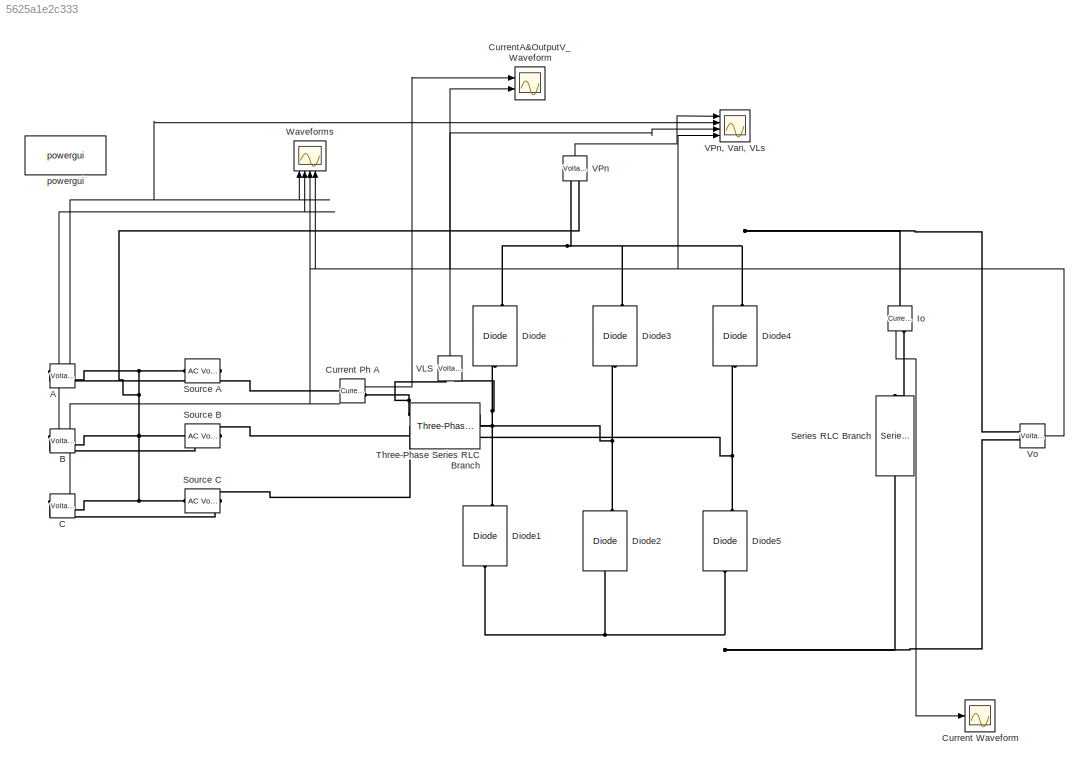
MODEL slx_5625a1e2c333
KIND model
CONFIG AbsTol = auto
CONFIG EnableMultiTasking = off
CONFIG FixedStep = auto
CONFIG MaxStep = auto
CONFIG MinStep = auto
CONFIG RelTol = 1e-3
CONFIG SampleTimeConstraint = Unconstrained
CONFIG SolverName = VariableStepAuto
CONFIG StartTime = 0.0
CONFIG StopTime = 0.1
BLOCK [Reference] A  REF=spsVoltageMeasurementLib/Voltage Measurement
  NameLocation = top
  Ports = [0, 1, 0, 0, 0, 2]
  SourceBlock = spsVoltageMeasurementLib/Voltage Measurement
  SourceProductBaseCode = PS
  SourceType = Voltage Measurement
  UserDataPersistent = on
BLOCK [Reference] B  REF=spsVoltageMeasurementLib/Voltage Measurement
  NameLocation = top
  Ports = [0, 1, 0, 0, 0, 2]
  SourceBlock = spsVoltageMeasurementLib/Voltage Measurement
  SourceProductBaseCode = PS
  SourceType = Voltage Measurement
  UserDataPersistent = on
BLOCK [Reference] C  REF=spsVoltageMeasurementLib/Voltage Measurement
  NameLocation = top
  Ports = [0, 1, 0, 0, 0, 2]
  SourceBlock = spsVoltageMeasurementLib/Voltage Measurement
  SourceProductBaseCode = PS
  SourceType = Voltage Measurement
  UserDataPersistent = on
BLOCK [Reference] Current Ph A  REF=spsCurrentMeasurementLib/Current Measurement
  Ports = [0, 1, 0, 0, 0, 1, 1]
  SourceBlock = spsCurrentMeasurementLib/Current Measurement
  SourceProductBaseCode = PS
  SourceType = Current Measurement
  UserDataPersistent = on
BLOCK [Scope] Current Waveform
  Floating = off
  NumInputPorts = 1
  Ports = [1]
  ScopeSpecificationString = Simulink.scopes.TimeScopeBlockCfg('CurrentConfiguration', extmgr.ConfigurationSet(extmgr.Configuration('Core','General UI',true),extmgr.Configuration('Core','Source UI',true),extmgr.Configuration('Sources','WiredSimulink',true,'DataLoggingVariableName','ScopeData1'),extmgr.Configuration('Visuals','Time Domain',true,'SerializedDisplays',{struct('MinYLimReal','-4.34536','MaxYLimReal','49.72934','YLa...<+1434ch>
BLOCK [Scope] CurrentA&OutputV_Waveform
  Floating = off
  NumInputPorts = 2
  Ports = [2]
  ScopeSpecificationString = Simulink.scopes.TimeScopeBlockCfg('CurrentConfiguration', extmgr.ConfigurationSet(extmgr.Configuration('Core','General UI',true),extmgr.Configuration('Core','Source UI',true),extmgr.Configuration('Sources','WiredSimulink',true,'DataLoggingVariableName','InCurOutVg','DataLogging',true),extmgr.Configuration('Visuals','Time Domain',true,'SerializedDisplays',{struct('MinYLimReal','-104.44318','MaxYLim...<+1509ch>
BLOCK [Reference] Diode  REF=spsDiodeLib/Diode
  NameLocation = right
  Ports = [0, 1, 0, 0, 0, 1, 1]
  SourceBlock = spsDiodeLib/Diode
  SourceProductBaseCode = PS
  SourceType = Diode
BLOCK [Reference] Diode1  REF=spsDiodeLib/Diode
  NameLocation = right
  Ports = [0, 1, 0, 0, 0, 1, 1]
  SourceBlock = spsDiodeLib/Diode
  SourceProductBaseCode = PS
  SourceType = Diode
BLOCK [Reference] Diode2  REF=spsDiodeLib/Diode
  NameLocation = right
  Ports = [0, 1, 0, 0, 0, 1, 1]
  SourceBlock = spsDiodeLib/Diode
  SourceProductBaseCode = PS
  SourceType = Diode
BLOCK [Reference] Diode3  REF=spsDiodeLib/Diode
  NameLocation = right
  Ports = [0, 1, 0, 0, 0, 1, 1]
  SourceBlock = spsDiodeLib/Diode
  SourceProductBaseCode = PS
  SourceType = Diode
BLOCK [Reference] Diode4  REF=spsDiodeLib/Diode
  NameLocation = right
  Ports = [0, 1, 0, 0, 0, 1, 1]
  SourceBlock = spsDiodeLib/Diode
  SourceProductBaseCode = PS
  SourceType = Diode
BLOCK [Reference] Diode5  REF=spsDiodeLib/Diode
  NameLocation = right
  Ports = [0, 1, 0, 0, 0, 1, 1]
  SourceBlock = spsDiodeLib/Diode
  SourceProductBaseCode = PS
  SourceType = Diode
BLOCK [Reference] Io  REF=spsCurrentMeasurementLib/Current Measurement
  NameLocation = left
  Ports = [0, 1, 0, 0, 0, 1, 1]
  SourceBlock = spsCurrentMeasurementLib/Current Measurement
  SourceProductBaseCode = PS
  SourceType = Current Measurement
  UserDataPersistent = on
BLOCK [Reference] Series RLC Branch  REF=spsSeriesRLCBranchLib/Series RLC Branch
  NameLocation = left
  Ports = [0, 0, 0, 0, 0, 1, 1]
  SourceBlock = spsSeriesRLCBranchLib/Series RLC Branch
  SourceProductBaseCode = PS
  SourceType = Series RLC Branch
BLOCK [Reference] Source A  REF=spsACVoltageSourceLib/AC Voltage Source
  NameLocation = left
  Ports = [0, 0, 0, 0, 0, 1, 1]
  SourceBlock = spsACVoltageSourceLib/AC Voltage Source
  SourceProductBaseCode = PS
  SourceType = AC Voltage Source
BLOCK [Reference] Source B  REF=spsACVoltageSourceLib/AC Voltage Source
  NameLocation = left
  Ports = [0, 0, 0, 0, 0, 1, 1]
  SourceBlock = spsACVoltageSourceLib/AC Voltage Source
  SourceProductBaseCode = PS
  SourceType = AC Voltage Source
BLOCK [Reference] Source C  REF=spsACVoltageSourceLib/AC Voltage Source
  NameLocation = left
  Ports = [0, 0, 0, 0, 0, 1, 1]
  SourceBlock = spsACVoltageSourceLib/AC Voltage Source
  SourceProductBaseCode = PS
  SourceType = AC Voltage Source
BLOCK [Reference] Three-Phase Series RLC Branch  REF=spsThreePhaseSeriesRLCBranchLib/Three-Phase
Series RLC Branch
  AttributesFormatString = \n
  Ports = [0, 0, 0, 0, 0, 3, 3]
  SourceBlock = spsThreePhaseSeriesRLCBranchLib/Three-Phase\nSeries RLC Branch
  SourceProductBaseCode = PS
  SourceType = Three-Phase Series RLC Branch
BLOCK [Reference] VLS  REF=spsVoltageMeasurementLib/Voltage Measurement
  NameLocation = right
  Ports = [0, 1, 0, 0, 0, 2]
  SourceBlock = spsVoltageMeasurementLib/Voltage Measurement
  SourceProductBaseCode = PS
  SourceType = Voltage Measurement
  UserDataPersistent = on
BLOCK [Reference] VPn  REF=spsVoltageMeasurementLib/Voltage Measurement
  NameLocation = right
  Ports = [0, 1, 0, 0, 0, 2]
  SourceBlock = spsVoltageMeasurementLib/Voltage Measurement
  SourceProductBaseCode = PS
  SourceType = Voltage Measurement
  UserDataPersistent = on
BLOCK [Scope] VPn, Van, VLs
  Floating = off
  NumInputPorts = 4
  Ports = [4]
  ScopeSpecificationString = Simulink.scopes.TimeScopeBlockCfg('CurrentConfiguration', extmgr.ConfigurationSet(extmgr.Configuration('Core','General UI',true),extmgr.Configuration('Core','Source UI',true),extmgr.Configuration('Sources','WiredSimulink',true,'DataLoggingVariableName','ScopeData1'),extmgr.Configuration('Visuals','Time Domain',true,'SerializedDisplays',{struct('MinYLimReal','-415.40234','MaxYLimReal','538.62106','...<+1512ch>
BLOCK [Reference] Vo  REF=spsVoltageMeasurementLib/Voltage Measurement
  Ports = [0, 1, 0, 0, 0, 2]
  SourceBlock = spsVoltageMeasurementLib/Voltage Measurement
  SourceProductBaseCode = PS
  SourceType = Voltage Measurement
  UserDataPersistent = on
BLOCK [Scope] Waveforms
  Floating = off
  NameLocation = right
  NumInputPorts = 5
  Ports = [5]
  ScopeSpecificationString = Simulink.scopes.TimeScopeBlockCfg('CurrentConfiguration', extmgr.ConfigurationSet(extmgr.Configuration('Core','General UI',true),extmgr.Configuration('Core','Source UI',true),extmgr.Configuration('Sources','WiredSimulink',true),extmgr.Configuration('Visuals','Time Domain',true,'SerializedDisplays',{struct('MinYLimReal','-415.40234','MaxYLimReal','538.62106','YLabelReal','','MinYLimMag',' 0.00000',...<+1886ch>
BLOCK [Reference] powergui  REF=spspowerguiLib/powergui
  Ports = []
  Priority = 1
  SourceBlock = spspowerguiLib/powergui
  SourceProductBaseCode = PS
  SourceType = PSB option menu block
NET A:1 -> VPn, Van, VLs:2, Waveforms:1
LINE B:1 -> Waveforms:2
LINE C:1 -> Waveforms:3
LINE Current Ph A:1 -> CurrentA&OutputV_Waveform:1
LINE Io:1 -> Current Waveform:1
LINE VLS:1 -> VPn, Van, VLs:3
LINE VPn:1 -> VPn, Van, VLs:1
NET Vo:1 -> CurrentA&OutputV_Waveform:2, VPn, Van, VLs:4, Waveforms:4
PNET net1: A:LConn1 -- Current Ph A:LConn1 -- Source A:RConn1
PNET net2: A:LConn2 -- B:LConn2 -- C:LConn2 -- Source A:LConn1 -- Source B:LConn1 -- Source C:LConn1 -- VPn:LConn2
PNET net3: B:LConn1 -- Source B:RConn1 -- Three-Phase Series RLC Branch:LConn2
PNET net4: C:LConn1 -- Source C:RConn1 -- Three-Phase Series RLC Branch:LConn3
PNET net5: Current Ph A:RConn1 -- Three-Phase Series RLC Branch:LConn1 -- VLS:LConn1
PNET net6: Diode1:LConn1 -- Diode2:LConn1 -- Diode5:LConn1 -- Series RLC Branch:RConn1 -- Vo:LConn2
PNET net7: Diode1:RConn1 -- Diode:LConn1 -- Three-Phase Series RLC Branch:RConn1 -- VLS:LConn2
PNET net8: Diode2:RConn1 -- Diode3:LConn1 -- Three-Phase Series RLC Branch:RConn2
PNET net9: Diode3:RConn1 -- Diode4:RConn1 -- Diode:RConn1 -- Io:LConn1 -- VPn:LConn1 -- Vo:LConn1
PNET net10: Diode4:LConn1 -- Diode5:RConn1 -- Three-Phase Series RLC Branch:RConn3
PLINE Io:RConn1 -- Series RLC Branch:LConn1
note: NET lines group one-source signal fan-out (src -> all destinations, sorted); 1:1 wires keep LINE; PNET lines group multi-terminal physical nets as a canonical sorted terminal list (undirected conserving connections); 2-terminal nets keep the pairwise PLINE form
